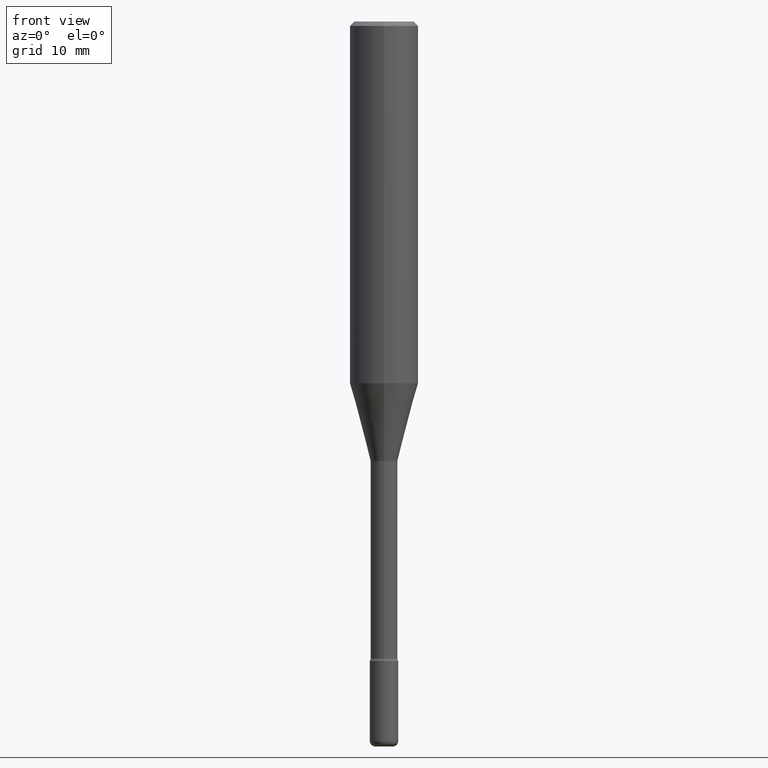
[diagram: clean part render]
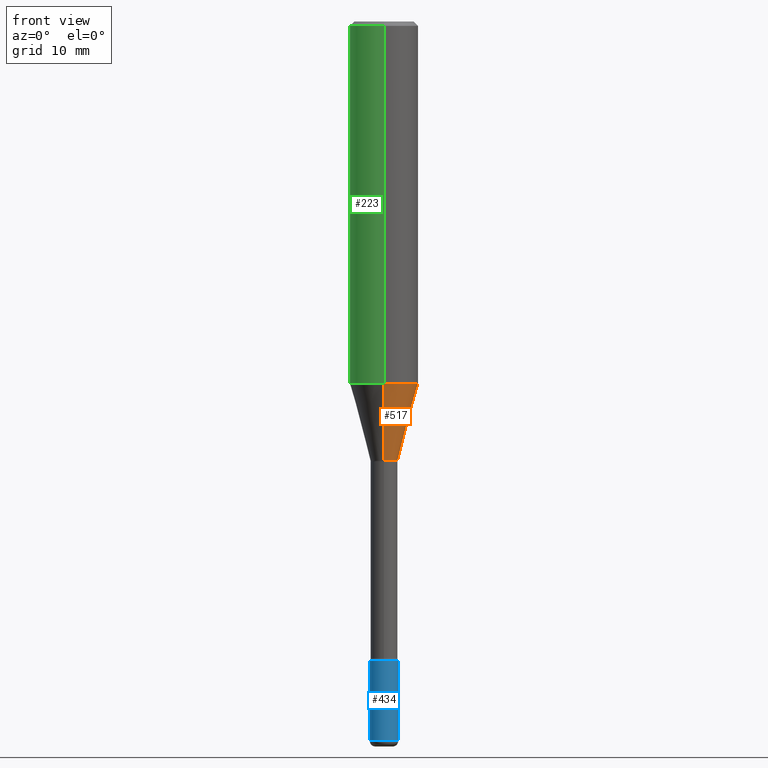
[diagram: same view with three faces highlighted in distinct colors, each labeled with its STEP entity id]
A machine part, front view with three faces highlighted in distinct colors.
Their STEP definitions:

[orange] entity #517 — the highlighted conical surface has half-angle 15 deg.
#14 = VERTEX_POINT ( 'NONE', #357 ) ;
#24 = VERTEX_POINT ( 'NONE', #198 ) ;
#31 = CIRCLE ( 'NONE', #265, 0.04676111260566399169 ) ;
#51 = VERTEX_POINT ( 'NONE', #193 ) ;
#56 = CARTESIAN_POINT ( 'NONE',  ( 3.702314243307729011E-29, -5.284831366687687522E-15, -1.513792501787273315 ) ) ;
#62 = DIRECTION ( 'NONE',  ( -2.445721087227316555E-29, 3.491120058031798950E-15, 1.000000000000000000 ) ) ;
#91 = ORIENTED_EDGE ( 'NONE', *, *, #350, .T. ) ;
#99 = ORIENTED_EDGE ( 'NONE', *, *, #216, .T. ) ;
#165 = DIRECTION ( 'NONE',  ( 1.839019923739597554E-15, 0.2588190451025245697, 0.9659258262890670910 ) ) ;
#184 = VERTEX_POINT ( 'NONE', #513 ) ;
#193 = CARTESIAN_POINT ( 'NONE',  ( 8.391509709327088641E-16, 0.1180999999999956807, -1.247552149476177430 ) ) ;
#198 = CARTESIAN_POINT ( 'NONE',  ( -3.265311040923994566E-16, -0.04676111260566927219, -1.513792501787273093 ) ) ;
#206 = DIRECTION ( 'NONE',  ( -6.982962677686265922E-15, -1.000000000000000000, 4.626330217890369336E-15 ) ) ;
#216 = EDGE_CURVE ( 'NONE', #14, #51, #423, .T. ) ;
#222 = EDGE_LOOP ( 'NONE', ( #91, #99, #275, #461 ) ) ;
#224 = DIRECTION ( 'NONE',  ( -6.982962677686265922E-15, -1.000000000000000000, 5.842136427980041740E-15 ) ) ;
#243 = VECTOR ( 'NONE', #445, 39.37007874015748143 ) ;
#259 = CONICAL_SURFACE ( 'NONE', #443, 0.04676111260566399169, 0.2617993877991499074 ) ;
#262 = EDGE_CURVE ( 'NONE', #184, #51, #535, .T. ) ;
#265 = AXIS2_PLACEMENT_3D ( 'NONE', #382, #380, #343 ) ;
#267 = FACE_OUTER_BOUND ( 'NONE', #222, .T. ) ;
#275 = ORIENTED_EDGE ( 'NONE', *, *, #262, .F. ) ;
#292 = AXIS2_PLACEMENT_3D ( 'NONE', #566, #518, #206 ) ;
#343 = DIRECTION ( 'NONE',  ( -6.982962677686265922E-15, -1.000000000000000000, 5.842136427980041740E-15 ) ) ;
#350 = EDGE_CURVE ( 'NONE', #24, #14, #31, .T. ) ;
#357 = CARTESIAN_POINT ( 'NONE',  ( 5.857043298564459926E-16, 0.04676111260565870426, -1.513792501787273537 ) ) ;
#366 = VECTOR ( 'NONE', #165, 39.37007874015748854 ) ;
#380 = DIRECTION ( 'NONE',  ( -2.445721087227316555E-29, 3.491120058031798950E-15, 1.000000000000000000 ) ) ;
#382 = CARTESIAN_POINT ( 'NONE',  ( 3.702314243307729011E-29, -5.284831366687687522E-15, -1.513792501787273315 ) ) ;
#406 = LINE ( 'NONE', #451, #243 ) ;
#423 = LINE ( 'NONE', #455, #366 ) ;
#443 = AXIS2_PLACEMENT_3D ( 'NONE', #56, #62, #224 ) ;
#445 = DIRECTION ( 'NONE',  ( -1.807323732225327773E-15, -0.2588190451025178529, 0.9659258262890690894 ) ) ;
#451 = CARTESIAN_POINT ( 'NONE',  ( -3.265311040923994566E-16, -0.04676111260566927219, -1.513792501787273093 ) ) ;
#455 = CARTESIAN_POINT ( 'NONE',  ( 3.322576887801829239E-16, 0.04676111260565870426, -1.513792501787273537 ) ) ;
#461 = ORIENTED_EDGE ( 'NONE', *, *, #472, .F. ) ;
#472 = EDGE_CURVE ( 'NONE', #24, #184, #406, .T. ) ;
#513 = CARTESIAN_POINT ( 'NONE',  ( -8.246878922347172998E-16, -0.1181000000000043126, -1.247552149476176320 ) ) ;
#517 = ADVANCED_FACE ( 'NONE', ( #267 ), #259, .T. ) ;
#518 = DIRECTION ( 'NONE',  ( -2.445721087227316555E-29, 3.491120058031798950E-15, 1.000000000000000000 ) ) ;
#535 = CIRCLE ( 'NONE', #292, 0.1180999999999999966 ) ;
#566 = CARTESIAN_POINT ( 'NONE',  ( 3.051164599389650582E-29, -4.355354332476965725E-15, -1.247552149476176764 ) ) ;

[blue] entity #434 — the highlighted cylindrical surface (edge-blend (fillet) strip) has radius 1.2497 mm, axis along (-0, 0, 1).
#4 = ORIENTED_EDGE ( 'NONE', *, *, #138, .T. ) ;
#6 = ORIENTED_EDGE ( 'NONE', *, *, #155, .F. ) ;
#17 = CARTESIAN_POINT ( 'NONE',  ( -0.04920000000000008394, -8.310334138738685102E-15, -2.480300000000000171 ) ) ;
#29 = CARTESIAN_POINT ( 'NONE',  ( 0.04920000000000000068, -8.041230671489647649E-15, -2.204700000000000326 ) ) ;
#32 = CIRCLE ( 'NONE', #341, 0.04920000000000000762 ) ;
#33 = DIRECTION ( 'NONE',  ( 1.000000000000000000, -6.982962677686260400E-15, 0.000000000000000000 ) ) ;
#55 = VERTEX_POINT ( 'NONE', #29 ) ;
#69 = VERTEX_POINT ( 'NONE', #17 ) ;
#80 = LINE ( 'NONE', #340, #238 ) ;
#98 = CIRCLE ( 'NONE', #532, 0.04920000000000000068 ) ;
#115 = VECTOR ( 'NONE', #437, 39.37007874015748143 ) ;
#120 = CARTESIAN_POINT ( 'NONE',  ( -0.04920000000000000068, 3.495870259939692963E-16, -2.420116064405413767E-30 ) ) ;
#133 = DIRECTION ( 'NONE',  ( 1.000000000000000000, -6.982962677686266711E-15, 4.876176775795935793E-29 ) ) ;
#138 = EDGE_CURVE ( 'NONE', #69, #533, #32, .T. ) ;
#140 = FACE_OUTER_BOUND ( 'NONE', #486, .T. ) ;
#147 = DIRECTION ( 'NONE',  ( 1.000000000000000000, -6.982962677686261977E-15, 0.000000000000000000 ) ) ;
#151 = CARTESIAN_POINT ( 'NONE',  ( 5.391525076996371277E-29, -7.697668907747483125E-15, -2.204700000000000326 ) ) ;
#155 = EDGE_CURVE ( 'NONE', #491, #55, #98, .T. ) ;
#196 = CARTESIAN_POINT ( 'NONE',  ( 0.04920000000000008394, -9.003482928474821437E-15, -2.480300000000000171 ) ) ;
#229 = AXIS2_PLACEMENT_3D ( 'NONE', #528, #391, #133 ) ;
#238 = VECTOR ( 'NONE', #565, 39.37007874015748143 ) ;
#282 = EDGE_CURVE ( 'NONE', #69, #491, #526, .T. ) ;
#285 = DIRECTION ( 'NONE',  ( -2.445468806185136597E-29, 3.491481338843145583E-15, 1.000000000000000000 ) ) ;
#340 = CARTESIAN_POINT ( 'NONE',  ( 0.04920000000000000068, -3.435617637421643269E-16, 2.399078973691600472E-30 ) ) ;
#341 = AXIS2_PLACEMENT_3D ( 'NONE', #365, #285, #33 ) ;
#351 = CYLINDRICAL_SURFACE ( 'NONE', #229, 0.04920000000000000068 ) ;
#365 = CARTESIAN_POINT ( 'NONE',  ( 6.065496279980994755E-29, -8.659921164732655335E-15, -2.480300000000000171 ) ) ;
#378 = EDGE_CURVE ( 'NONE', #533, #55, #80, .T. ) ;
#391 = DIRECTION ( 'NONE',  ( -2.445468806185136597E-29, 3.491481338843145583E-15, 1.000000000000000000 ) ) ;
#400 = CARTESIAN_POINT ( 'NONE',  ( -0.04920000000000000068, -7.829208010246099786E-15, -2.204700000000000326 ) ) ;
#404 = ORIENTED_EDGE ( 'NONE', *, *, #378, .T. ) ;
#434 = ADVANCED_FACE ( 'NONE', ( #140 ), #351, .T. ) ;
#437 = DIRECTION ( 'NONE',  ( -2.445468806185136877E-29, 3.491481338843145188E-15, 1.000000000000000000 ) ) ;
#486 = EDGE_LOOP ( 'NONE', ( #506, #4, #404, #6 ) ) ;
#491 = VERTEX_POINT ( 'NONE', #400 ) ;
#503 = DIRECTION ( 'NONE',  ( -2.445468806185136597E-29, 3.491481338843145583E-15, 1.000000000000000000 ) ) ;
#506 = ORIENTED_EDGE ( 'NONE', *, *, #282, .F. ) ;
#526 = LINE ( 'NONE', #120, #115 ) ;
#528 = CARTESIAN_POINT ( 'NONE',  ( 0.000000000000000000, 0.000000000000000000, 0.000000000000000000 ) ) ;
#532 = AXIS2_PLACEMENT_3D ( 'NONE', #151, #503, #147 ) ;
#533 = VERTEX_POINT ( 'NONE', #196 ) ;
#565 = DIRECTION ( 'NONE',  ( -2.445468806185136877E-29, 3.491481338843145188E-15, 1.000000000000000000 ) ) ;

[green] entity #223 — the highlighted cylindrical surface (edge-blend (fillet) strip) has radius 2.9997 mm, axis along (-0, 0, 1).
#5 = CARTESIAN_POINT ( 'NONE',  ( -8.246878922347479668E-16, -0.1180999999999999966, 8.903746777448015409E-16 ) ) ;
#8 = ORIENTED_EDGE ( 'NONE', *, *, #129, .T. ) ;
#22 = DIRECTION ( 'NONE',  ( -2.445721087227316555E-29, 3.491120058031798950E-15, 1.000000000000000000 ) ) ;
#41 = CARTESIAN_POINT ( 'NONE',  ( 8.391509709326781971E-16, 0.1180999999999999966, 6.577212003769061022E-17 ) ) ;
#51 = VERTEX_POINT ( 'NONE', #193 ) ;
#53 = CIRCLE ( 'NONE', #435, 0.1180999999999999966 ) ;
#58 = CARTESIAN_POINT ( 'NONE',  ( -8.246878922347475723E-16, -0.1181000000000000522, -0.01499999999999961607 ) ) ;
#76 = CARTESIAN_POINT ( 'NONE',  ( 3.668581630840980928E-31, -5.236680087047708706E-17, -0.01500000000000002720 ) ) ;
#95 = CARTESIAN_POINT ( 'NONE',  ( 8.391509709327088641E-16, 0.1180999999999999411, -0.01500000000000044006 ) ) ;
#125 = DIRECTION ( 'NONE',  ( -2.445721087227316555E-29, 3.491120058031798950E-15, 1.000000000000000000 ) ) ;
#126 = CIRCLE ( 'NONE', #462, 0.1180999999999999966 ) ;
#128 = DIRECTION ( 'NONE',  ( -2.445721087227316555E-29, 3.491120058031798950E-15, 1.000000000000000000 ) ) ;
#129 = EDGE_CURVE ( 'NONE', #51, #184, #126, .T. ) ;
#139 = AXIS2_PLACEMENT_3D ( 'NONE', #570, #125, #208 ) ;
#153 = ORIENTED_EDGE ( 'NONE', *, *, #547, .F. ) ;
#168 = CYLINDRICAL_SURFACE ( 'NONE', #139, 0.1180999999999999966 ) ;
#184 = VERTEX_POINT ( 'NONE', #513 ) ;
#193 = CARTESIAN_POINT ( 'NONE',  ( 8.391509709327088641E-16, 0.1180999999999956807, -1.247552149476177430 ) ) ;
#208 = DIRECTION ( 'NONE',  ( -6.982962677686265922E-15, -1.000000000000000000, 3.491120058031799739E-15 ) ) ;
#212 = VECTOR ( 'NONE', #128, 39.37007874015748143 ) ;
#219 = LINE ( 'NONE', #5, #405 ) ;
#223 = ADVANCED_FACE ( 'NONE', ( #522 ), #168, .T. ) ;
#258 = LINE ( 'NONE', #41, #212 ) ;
#268 = ORIENTED_EDGE ( 'NONE', *, *, #465, .T. ) ;
#286 = DIRECTION ( 'NONE',  ( -6.982962677686265922E-15, -1.000000000000000000, 3.487819265831411744E-15 ) ) ;
#290 = EDGE_CURVE ( 'NONE', #51, #444, #258, .T. ) ;
#367 = EDGE_LOOP ( 'NONE', ( #438, #8, #268, #153 ) ) ;
#405 = VECTOR ( 'NONE', #487, 39.37007874015748143 ) ;
#413 = CARTESIAN_POINT ( 'NONE',  ( 3.051164599389650582E-29, -4.355354332476965725E-15, -1.247552149476176764 ) ) ;
#414 = DIRECTION ( 'NONE',  ( -2.445721087227316555E-29, 3.491120058031798950E-15, 1.000000000000000000 ) ) ;
#435 = AXIS2_PLACEMENT_3D ( 'NONE', #76, #414, #286 ) ;
#438 = ORIENTED_EDGE ( 'NONE', *, *, #290, .F. ) ;
#444 = VERTEX_POINT ( 'NONE', #95 ) ;
#462 = AXIS2_PLACEMENT_3D ( 'NONE', #413, #22, #545 ) ;
#465 = EDGE_CURVE ( 'NONE', #184, #496, #219, .T. ) ;
#487 = DIRECTION ( 'NONE',  ( -2.445721087227316555E-29, 3.491120058031798950E-15, 1.000000000000000000 ) ) ;
#496 = VERTEX_POINT ( 'NONE', #58 ) ;
#513 = CARTESIAN_POINT ( 'NONE',  ( -8.246878922347172998E-16, -0.1181000000000043126, -1.247552149476176320 ) ) ;
#522 = FACE_OUTER_BOUND ( 'NONE', #367, .T. ) ;
#545 = DIRECTION ( 'NONE',  ( -6.982962677686265922E-15, -1.000000000000000000, 4.626330217890369336E-15 ) ) ;
#547 = EDGE_CURVE ( 'NONE', #444, #496, #53, .T. ) ;
#570 = CARTESIAN_POINT ( 'NONE',  ( -1.169113584055446105E-44, 1.669184350826100908E-30, 4.780733988912460139E-16 ) ) ;